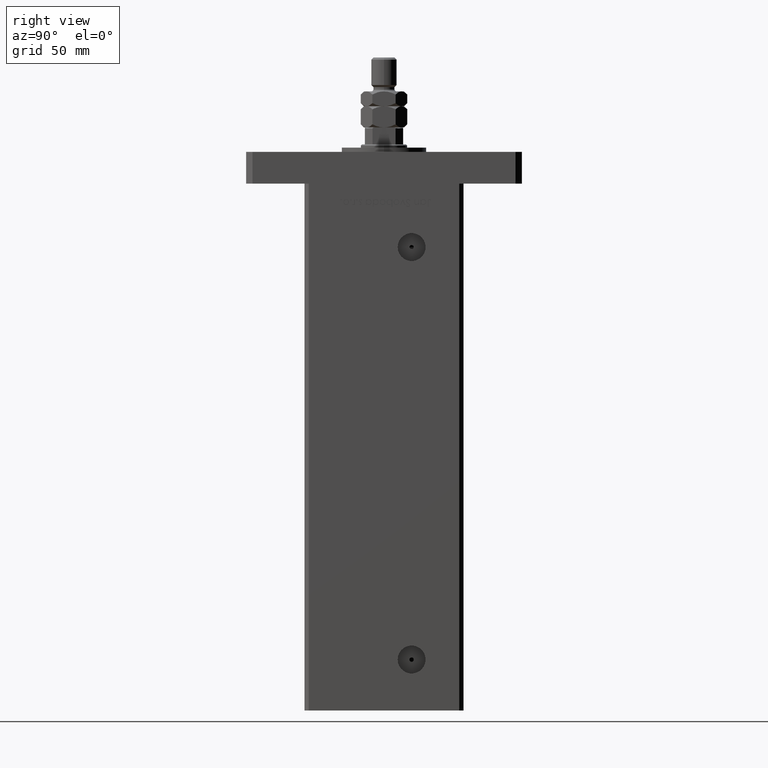
[diagram: clean part render]
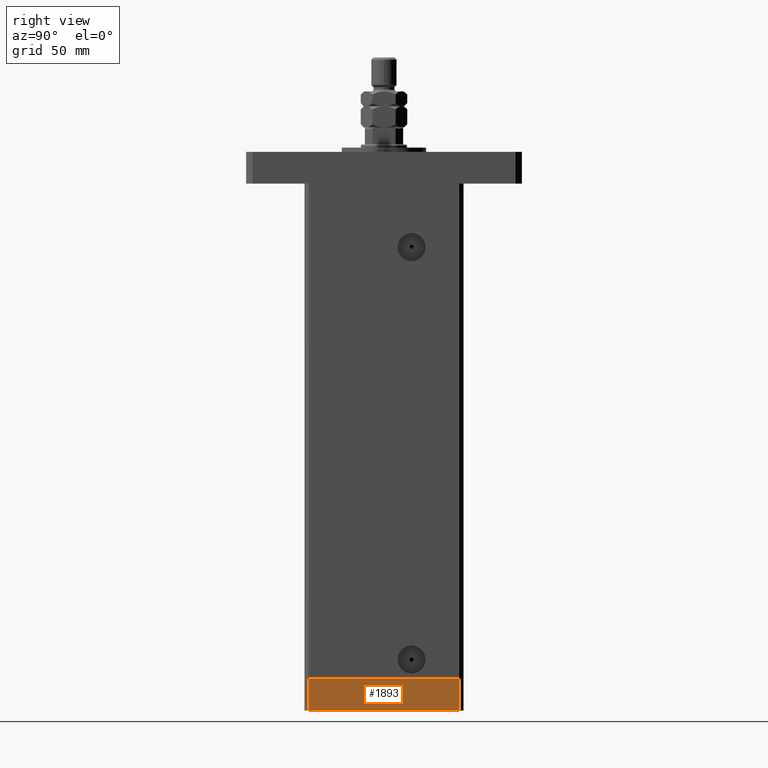
[diagram: same view with one face highlighted and labeled with its STEP entity id]
A machine part, right view. The second image highlights one B-rep face of the part: STEP entity #1893.
In plain terms, the highlighted planar face has unit normal (1, -0, 0).
Its self-contained STEP definition (entity closure, byte-faithful):
#1157 = PLANE ( 'NONE',  #5355 ) ;
#1893 = ADVANCED_FACE ( 'NONE', ( #44646 ), #1157, .T. ) ;
#2060 = DIRECTION ( 'NONE',  ( 9.773090005503140331E-17, -1.000000000000000000, 0.000000000000000000 ) ) ;
#5355 = AXIS2_PLACEMENT_3D ( 'NONE', #31547, #18735, #48832 ) ;
#5660 = EDGE_CURVE ( 'NONE', #8294, #25409, #47738, .T. ) ;
#6345 = EDGE_CURVE ( 'NONE', #9584, #25409, #40538, .T. ) ;
#8294 = VERTEX_POINT ( 'NONE', #10291 ) ;
#9584 = VERTEX_POINT ( 'NONE', #40625 ) ;
#10291 = CARTESIAN_POINT ( 'NONE',  ( -42.50000000000000000, -35.50000000000000711, -15.00000000000000000 ) ) ;
#11307 = ORIENTED_EDGE ( 'NONE', *, *, #5660, .T. ) ;
#14978 = EDGE_LOOP ( 'NONE', ( #45498, #51172, #34221, #11307 ) ) ;
#18735 = DIRECTION ( 'NONE',  ( -1.000000000000000000, -9.773090005503140331E-17, 0.000000000000000000 ) ) ;
#19372 = CARTESIAN_POINT ( 'NONE',  ( -42.50000000000000711, 35.49999999999997158, 0.000000000000000000 ) ) ;
#19625 = DIRECTION ( 'NONE',  ( 9.773090005503140331E-17, -1.000000000000000000, 0.000000000000000000 ) ) ;
#20493 = LINE ( 'NONE', #34128, #38568 ) ;
#21272 = DIRECTION ( 'NONE',  ( 0.000000000000000000, 0.000000000000000000, 1.000000000000000000 ) ) ;
#24263 = CARTESIAN_POINT ( 'NONE',  ( -42.50000000000000711, 35.49999999999997158, -15.00000000000000000 ) ) ;
#25409 = VERTEX_POINT ( 'NONE', #52209 ) ;
#27573 = EDGE_CURVE ( 'NONE', #33995, #8294, #39679, .T. ) ;
#30975 = EDGE_CURVE ( 'NONE', #33995, #9584, #20493, .T. ) ;
#31547 = CARTESIAN_POINT ( 'NONE',  ( -42.50000000000000711, 35.49999999999997158, -15.00000000000000000 ) ) ;
#33995 = VERTEX_POINT ( 'NONE', #24263 ) ;
#34128 = CARTESIAN_POINT ( 'NONE',  ( -42.50000000000000711, 35.49999999999997158, -15.00000000000000000 ) ) ;
#34221 = ORIENTED_EDGE ( 'NONE', *, *, #27573, .T. ) ;
#36337 = CARTESIAN_POINT ( 'NONE',  ( -42.50000000000000711, 35.49999999999997158, -15.00000000000000000 ) ) ;
#38568 = VECTOR ( 'NONE', #42762, 1000.000000000000000 ) ;
#39315 = VECTOR ( 'NONE', #2060, 1000.000000000000000 ) ;
#39679 = LINE ( 'NONE', #36337, #49128 ) ;
#40538 = LINE ( 'NONE', #19372, #39315 ) ;
#40625 = CARTESIAN_POINT ( 'NONE',  ( -42.50000000000000711, 35.49999999999997158, 0.000000000000000000 ) ) ;
#42762 = DIRECTION ( 'NONE',  ( 0.000000000000000000, 0.000000000000000000, 1.000000000000000000 ) ) ;
#44637 = VECTOR ( 'NONE', #21272, 1000.000000000000000 ) ;
#44646 = FACE_OUTER_BOUND ( 'NONE', #14978, .T. ) ;
#45498 = ORIENTED_EDGE ( 'NONE', *, *, #6345, .F. ) ;
#47177 = CARTESIAN_POINT ( 'NONE',  ( -42.50000000000000000, -35.50000000000000711, -15.00000000000000000 ) ) ;
#47738 = LINE ( 'NONE', #47177, #44637 ) ;
#48832 = DIRECTION ( 'NONE',  ( 9.773090005503140331E-17, -1.000000000000000000, 0.000000000000000000 ) ) ;
#49128 = VECTOR ( 'NONE', #19625, 1000.000000000000000 ) ;
#51172 = ORIENTED_EDGE ( 'NONE', *, *, #30975, .F. ) ;
#52209 = CARTESIAN_POINT ( 'NONE',  ( -42.50000000000000000, -35.50000000000000711, 0.000000000000000000 ) ) ;